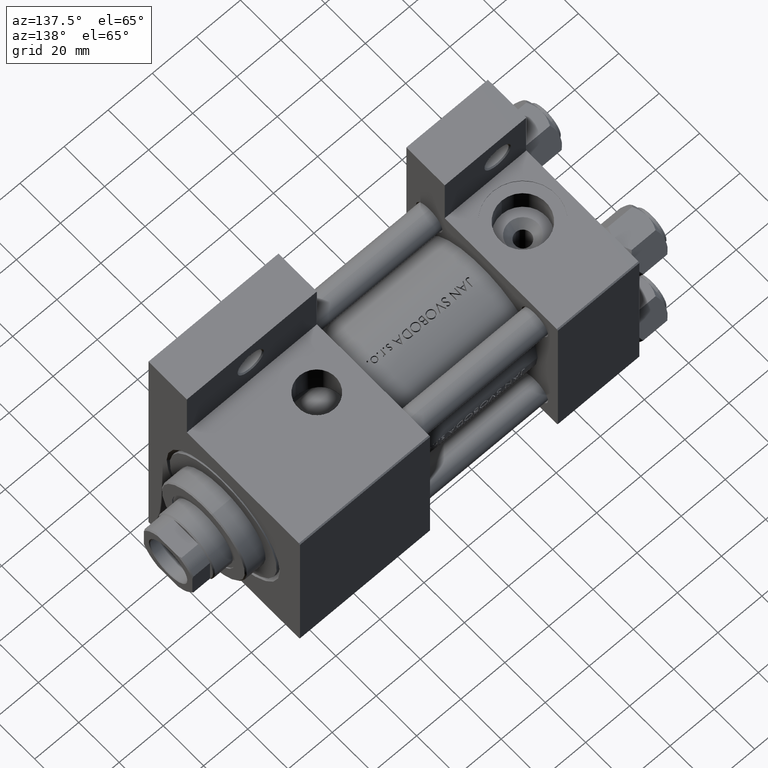
[diagram: clean part render]
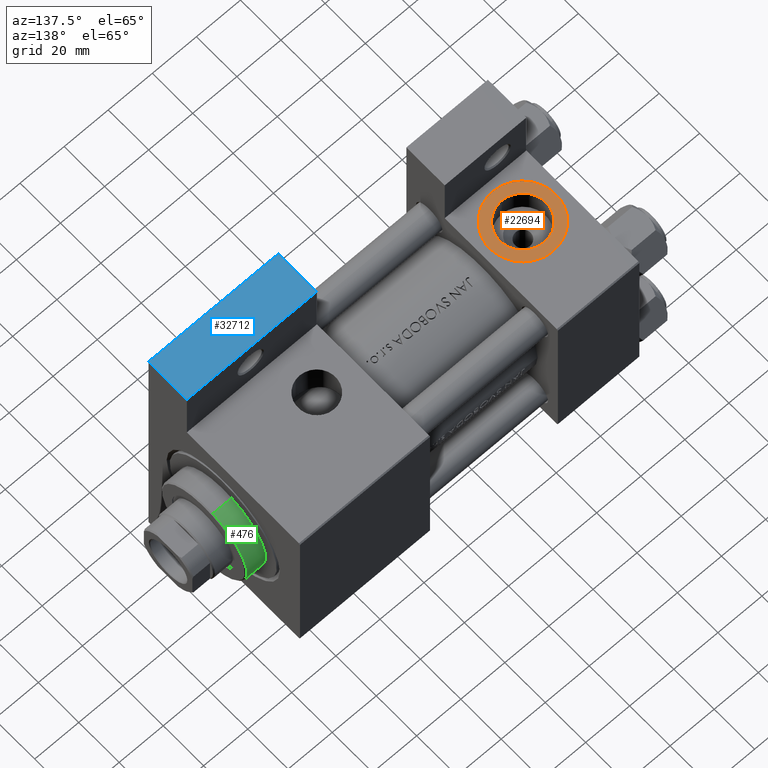
[diagram: same view with three faces highlighted in distinct colors, each labeled with its STEP entity id]
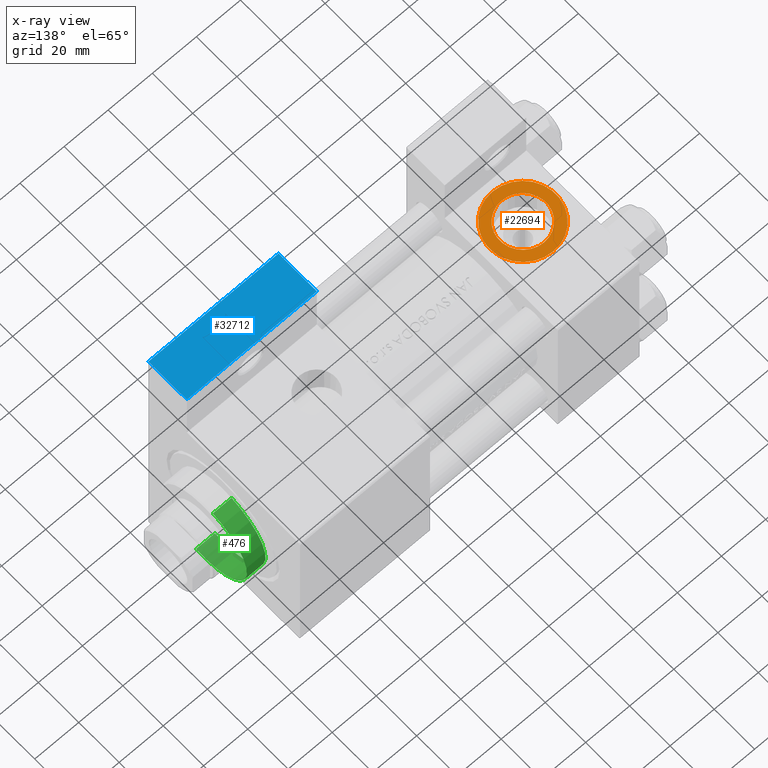
[diagram: x-ray of the same camera — body ghosted, the three highlighted faces saturated]
A machine part, auxiliary view with three faces highlighted in distinct colors.
The next image is the same camera in x-ray (body ghosted, the three faces saturated) — at least one of them is partly hidden behind the body in this view.
Their STEP definitions:

[orange] entity #22694 — the highlighted planar face has unit normal (0, -0, 1).
#1590 = DIRECTION ( 'NONE',  ( 0.000000000000000000, -1.000000000000000000, -8.673617379884036705E-17 ) ) ;
#1712 = CARTESIAN_POINT ( 'NONE',  ( 18.50000000000000000, -37.30000000000000426, -3.452099717193846907E-15 ) ) ;
#1961 = DIRECTION ( 'NONE',  ( 0.000000000000000000, -1.000000000000000000, -8.673617379884036705E-17 ) ) ;
#3180 = VERTEX_POINT ( 'NONE', #35315 ) ;
#3907 = EDGE_CURVE ( 'NONE', #25428, #12999, #28742, .T. ) ;
#4063 = EDGE_CURVE ( 'NONE', #3180, #11072, #35699, .T. ) ;
#5046 = CIRCLE ( 'NONE', #10421, 15.00000000000000178 ) ;
#6042 = DIRECTION ( 'NONE',  ( 0.000000000000000000, 0.000000000000000000, -1.000000000000000000 ) ) ;
#6506 = DIRECTION ( 'NONE',  ( 0.000000000000000000, 0.000000000000000000, -1.000000000000000000 ) ) ;
#9367 = CIRCLE ( 'NONE', #16265, 10.48000000000000043 ) ;
#9516 = CARTESIAN_POINT ( 'NONE',  ( 18.50000000000000000, -37.30000000000000426, -15.00000000000000533 ) ) ;
#9643 = CARTESIAN_POINT ( 'NONE',  ( 18.50000000000000000, -37.30000000000000426, -10.48000000000000398 ) ) ;
#10421 = AXIS2_PLACEMENT_3D ( 'NONE', #27708, #1961, #6042 ) ;
#11072 = VERTEX_POINT ( 'NONE', #9516 ) ;
#11190 = DIRECTION ( 'NONE',  ( 0.000000000000000000, -1.000000000000000000, -8.673617379884036705E-17 ) ) ;
#11202 = EDGE_CURVE ( 'NONE', #12999, #25428, #9367, .T. ) ;
#12999 = VERTEX_POINT ( 'NONE', #9643 ) ;
#14958 = AXIS2_PLACEMENT_3D ( 'NONE', #18054, #39951, #6506 ) ;
#15646 = AXIS2_PLACEMENT_3D ( 'NONE', #1712, #23841, #41677 ) ;
#16265 = AXIS2_PLACEMENT_3D ( 'NONE', #45740, #11190, #25879 ) ;
#18054 = CARTESIAN_POINT ( 'NONE',  ( 18.50000000000000000, -37.30000000000000426, -3.452099717193846907E-15 ) ) ;
#19691 = EDGE_LOOP ( 'NONE', ( #36910, #39582 ) ) ;
#20105 = FACE_OUTER_BOUND ( 'NONE', #19691, .T. ) ;
#22694 = ADVANCED_FACE ( 'NONE', ( #46075, #20105 ), #45613, .T. ) ;
#23841 = DIRECTION ( 'NONE',  ( 0.000000000000000000, -1.000000000000000000, -8.673617379884036705E-17 ) ) ;
#23942 = CARTESIAN_POINT ( 'NONE',  ( 18.50000000000000000, -37.30000000000000426, -3.452099717193846907E-15 ) ) ;
#24187 = AXIS2_PLACEMENT_3D ( 'NONE', #23942, #1590, #34552 ) ;
#25428 = VERTEX_POINT ( 'NONE', #45901 ) ;
#25879 = DIRECTION ( 'NONE',  ( 0.000000000000000000, 0.000000000000000000, -1.000000000000000000 ) ) ;
#27179 = ORIENTED_EDGE ( 'NONE', *, *, #3907, .F. ) ;
#27708 = CARTESIAN_POINT ( 'NONE',  ( 18.50000000000000000, -37.30000000000000426, -3.452099717193846907E-15 ) ) ;
#28468 = EDGE_CURVE ( 'NONE', #11072, #3180, #5046, .T. ) ;
#28742 = CIRCLE ( 'NONE', #15646, 10.48000000000000043 ) ;
#29841 = EDGE_LOOP ( 'NONE', ( #45219, #27179 ) ) ;
#34552 = DIRECTION ( 'NONE',  ( 0.000000000000000000, 8.673617379884036705E-17, -1.000000000000000000 ) ) ;
#35315 = CARTESIAN_POINT ( 'NONE',  ( 18.50000000000000355, -37.30000000000000426, 14.99999999999999822 ) ) ;
#35699 = CIRCLE ( 'NONE', #14958, 15.00000000000000178 ) ;
#36910 = ORIENTED_EDGE ( 'NONE', *, *, #28468, .T. ) ;
#39582 = ORIENTED_EDGE ( 'NONE', *, *, #4063, .T. ) ;
#39951 = DIRECTION ( 'NONE',  ( 0.000000000000000000, -1.000000000000000000, -8.673617379884036705E-17 ) ) ;
#41677 = DIRECTION ( 'NONE',  ( 0.000000000000000000, 0.000000000000000000, -1.000000000000000000 ) ) ;
#45219 = ORIENTED_EDGE ( 'NONE', *, *, #11202, .F. ) ;
#45613 = PLANE ( 'NONE',  #24187 ) ;
#45740 = CARTESIAN_POINT ( 'NONE',  ( 18.50000000000000000, -37.30000000000000426, -3.452099717193846907E-15 ) ) ;
#45901 = CARTESIAN_POINT ( 'NONE',  ( 18.50000000000000000, -37.30000000000000426, 10.47999999999999687 ) ) ;
#46075 = FACE_BOUND ( 'NONE', #29841, .T. ) ;

[blue] entity #32712 — the highlighted planar face has unit normal (0, 0, 1).
#1587 = CARTESIAN_POINT ( 'NONE',  ( 154.0000000000000000, -63.50000000000000000, -37.50000000000000000 ) ) ;
#2098 = VECTOR ( 'NONE', #28497, 1000.000000000000000 ) ;
#3172 = CARTESIAN_POINT ( 'NONE',  ( 95.00000000000000000, -63.50000000000000000, -18.50000000000000000 ) ) ;
#5004 = CARTESIAN_POINT ( 'NONE',  ( 95.00000000000000000, -63.50000000000000000, -18.50000000000000000 ) ) ;
#5973 = VERTEX_POINT ( 'NONE', #36664 ) ;
#6324 = PLANE ( 'NONE',  #18972 ) ;
#6906 = VECTOR ( 'NONE', #16061, 1000.000000000000000 ) ;
#6947 = EDGE_CURVE ( 'NONE', #44525, #36035, #37965, .T. ) ;
#7269 = EDGE_CURVE ( 'NONE', #21830, #36035, #24398, .T. ) ;
#8931 = ORIENTED_EDGE ( 'NONE', *, *, #43189, .T. ) ;
#10408 = FACE_OUTER_BOUND ( 'NONE', #41311, .T. ) ;
#16061 = DIRECTION ( 'NONE',  ( 0.000000000000000000, 0.000000000000000000, -1.000000000000000000 ) ) ;
#16876 = VECTOR ( 'NONE', #23920, 1000.000000000000000 ) ;
#18972 = AXIS2_PLACEMENT_3D ( 'NONE', #31586, #27986, #39289 ) ;
#19882 = CARTESIAN_POINT ( 'NONE',  ( 154.0000000000000000, -63.50000000000000000, -18.50000000000000000 ) ) ;
#21404 = ORIENTED_EDGE ( 'NONE', *, *, #39441, .F. ) ;
#21830 = VERTEX_POINT ( 'NONE', #1587 ) ;
#23920 = DIRECTION ( 'NONE',  ( -1.000000000000000000, -0.000000000000000000, -0.000000000000000000 ) ) ;
#24398 = LINE ( 'NONE', #39074, #16876 ) ;
#27986 = DIRECTION ( 'NONE',  ( 0.000000000000000000, -1.000000000000000000, 0.000000000000000000 ) ) ;
#28497 = DIRECTION ( 'NONE',  ( -1.000000000000000000, -0.000000000000000000, -0.000000000000000000 ) ) ;
#29700 = CARTESIAN_POINT ( 'NONE',  ( 95.00000000000000000, -63.50000000000000000, -37.50000000000000000 ) ) ;
#30247 = LINE ( 'NONE', #19882, #45793 ) ;
#30497 = ORIENTED_EDGE ( 'NONE', *, *, #6947, .T. ) ;
#31586 = CARTESIAN_POINT ( 'NONE',  ( 95.00000000000000000, -63.50000000000000000, -18.50000000000000000 ) ) ;
#32712 = ADVANCED_FACE ( 'NONE', ( #10408 ), #6324, .T. ) ;
#33302 = LINE ( 'NONE', #47479, #2098 ) ;
#33719 = ORIENTED_EDGE ( 'NONE', *, *, #7269, .F. ) ;
#36035 = VERTEX_POINT ( 'NONE', #29700 ) ;
#36664 = CARTESIAN_POINT ( 'NONE',  ( 154.0000000000000000, -63.50000000000000000, -18.50000000000000000 ) ) ;
#37965 = LINE ( 'NONE', #5004, #6906 ) ;
#39074 = CARTESIAN_POINT ( 'NONE',  ( 95.00000000000000000, -63.50000000000000000, -37.50000000000000000 ) ) ;
#39289 = DIRECTION ( 'NONE',  ( 0.000000000000000000, -0.000000000000000000, -1.000000000000000000 ) ) ;
#39441 = EDGE_CURVE ( 'NONE', #5973, #21830, #30247, .T. ) ;
#41075 = DIRECTION ( 'NONE',  ( 0.000000000000000000, 0.000000000000000000, -1.000000000000000000 ) ) ;
#41311 = EDGE_LOOP ( 'NONE', ( #33719, #21404, #8931, #30497 ) ) ;
#43189 = EDGE_CURVE ( 'NONE', #5973, #44525, #33302, .T. ) ;
#44525 = VERTEX_POINT ( 'NONE', #3172 ) ;
#45793 = VECTOR ( 'NONE', #41075, 1000.000000000000000 ) ;
#47479 = CARTESIAN_POINT ( 'NONE',  ( 95.00000000000000000, -63.50000000000000000, -18.50000000000000000 ) ) ;

[green] entity #476 — the highlighted cylindrical surface (partial cylindrical patch) has radius 21 mm, axis along (-1, 0, -0).
#103 = ORIENTED_EDGE ( 'NONE', *, *, #23852, .T. ) ;
#476 = ADVANCED_FACE ( 'NONE', ( #19579 ), #30425, .T. ) ;
#949 = AXIS2_PLACEMENT_3D ( 'NONE', #26343, #37879, #41013 ) ;
#1054 = VECTOR ( 'NONE', #18192, 1000.000000000000000 ) ;
#1419 = ORIENTED_EDGE ( 'NONE', *, *, #9337, .T. ) ;
#2047 = DIRECTION ( 'NONE',  ( 0.000000000000000000, 0.000000000000000000, -1.000000000000000000 ) ) ;
#4175 = CARTESIAN_POINT ( 'NONE',  ( -21.00000000000000000, 0.000000000000000000, 37.69999999999999574 ) ) ;
#6271 = VECTOR ( 'NONE', #33060, 1000.000000000000000 ) ;
#7409 = DIRECTION ( 'NONE',  ( 1.000000000000000000, 0.000000000000000000, 0.000000000000000000 ) ) ;
#8039 = CARTESIAN_POINT ( 'NONE',  ( -21.00000000000000000, 0.000000000000000000, 28.69999999999999929 ) ) ;
#8100 = AXIS2_PLACEMENT_3D ( 'NONE', #10531, #40365, #7409 ) ;
#9337 = EDGE_CURVE ( 'NONE', #18630, #30201, #24649, .T. ) ;
#10215 = DIRECTION ( 'NONE',  ( 1.000000000000000000, 0.000000000000000000, 0.000000000000000000 ) ) ;
#10531 = CARTESIAN_POINT ( 'NONE',  ( 0.000000000000000000, 0.000000000000000000, 28.69999999999999929 ) ) ;
#15518 = EDGE_CURVE ( 'NONE', #30201, #37166, #18376, .T. ) ;
#18192 = DIRECTION ( 'NONE',  ( -0.000000000000000000, -0.000000000000000000, -1.000000000000000000 ) ) ;
#18376 = LINE ( 'NONE', #4175, #6271 ) ;
#18630 = VERTEX_POINT ( 'NONE', #19588 ) ;
#19579 = FACE_OUTER_BOUND ( 'NONE', #31627, .T. ) ;
#19588 = CARTESIAN_POINT ( 'NONE',  ( 21.00000000000000000, 2.571758278209441661E-15, 37.19999999999999574 ) ) ;
#20050 = AXIS2_PLACEMENT_3D ( 'NONE', #43187, #2047, #10215 ) ;
#20746 = ORIENTED_EDGE ( 'NONE', *, *, #34859, .F. ) ;
#23852 = EDGE_CURVE ( 'NONE', #37166, #32710, #44205, .T. ) ;
#24649 = CIRCLE ( 'NONE', #20050, 21.00000000000000000 ) ;
#26343 = CARTESIAN_POINT ( 'NONE',  ( 0.000000000000000000, 0.000000000000000000, 37.69999999999999574 ) ) ;
#26608 = CARTESIAN_POINT ( 'NONE',  ( 21.00000000000000000, 2.571758278209441661E-15, 37.69999999999999574 ) ) ;
#29601 = ORIENTED_EDGE ( 'NONE', *, *, #15518, .T. ) ;
#30201 = VERTEX_POINT ( 'NONE', #34175 ) ;
#30425 = CYLINDRICAL_SURFACE ( 'NONE', #949, 21.00000000000000000 ) ;
#31627 = EDGE_LOOP ( 'NONE', ( #20746, #1419, #29601, #103 ) ) ;
#32710 = VERTEX_POINT ( 'NONE', #35195 ) ;
#33060 = DIRECTION ( 'NONE',  ( -0.000000000000000000, -0.000000000000000000, -1.000000000000000000 ) ) ;
#34175 = CARTESIAN_POINT ( 'NONE',  ( -21.00000000000000000, 0.000000000000000000, 37.19999999999999574 ) ) ;
#34859 = EDGE_CURVE ( 'NONE', #18630, #32710, #44885, .T. ) ;
#35195 = CARTESIAN_POINT ( 'NONE',  ( 21.00000000000000000, 2.571758278209441661E-15, 28.69999999999999929 ) ) ;
#37166 = VERTEX_POINT ( 'NONE', #8039 ) ;
#37879 = DIRECTION ( 'NONE',  ( -0.000000000000000000, -0.000000000000000000, -1.000000000000000000 ) ) ;
#40365 = DIRECTION ( 'NONE',  ( 0.000000000000000000, 0.000000000000000000, 1.000000000000000000 ) ) ;
#41013 = DIRECTION ( 'NONE',  ( -1.000000000000000000, 0.000000000000000000, 0.000000000000000000 ) ) ;
#43187 = CARTESIAN_POINT ( 'NONE',  ( 0.000000000000000000, 0.000000000000000000, 37.19999999999999574 ) ) ;
#44205 = CIRCLE ( 'NONE', #8100, 21.00000000000000000 ) ;
#44885 = LINE ( 'NONE', #26608, #1054 ) ;